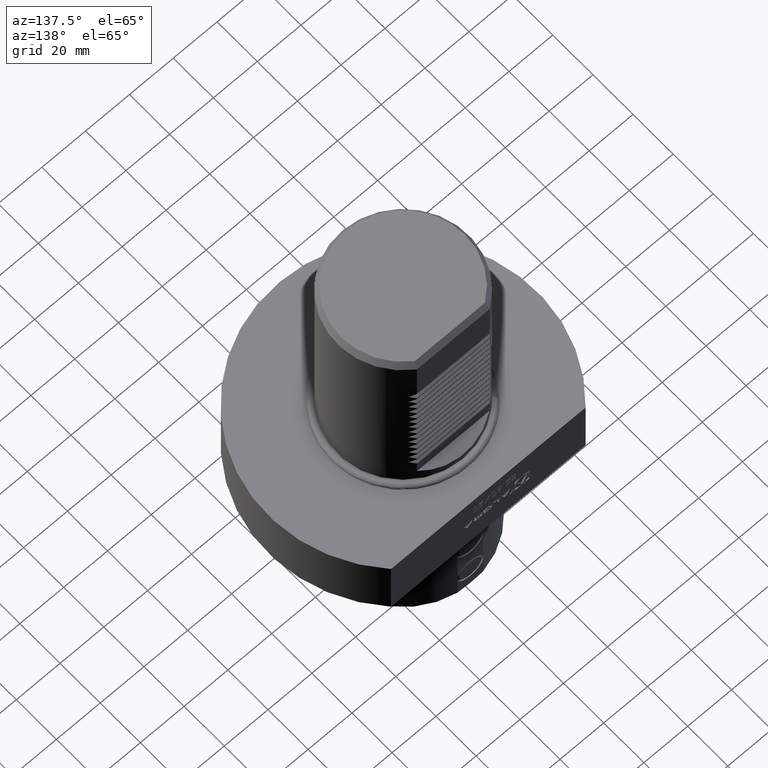
[diagram: clean part render]
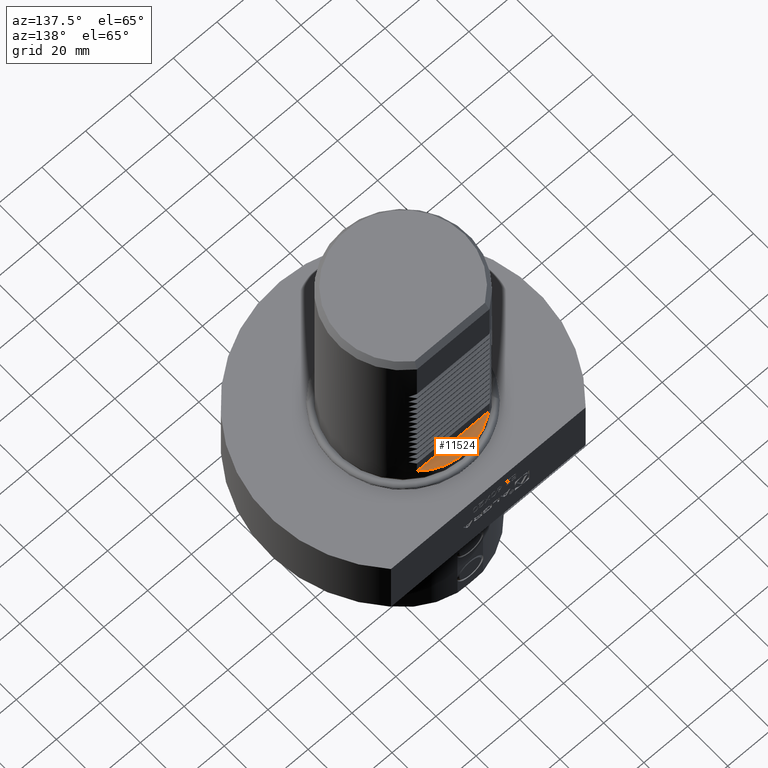
[diagram: same view with one face highlighted and labeled with its STEP entity id]
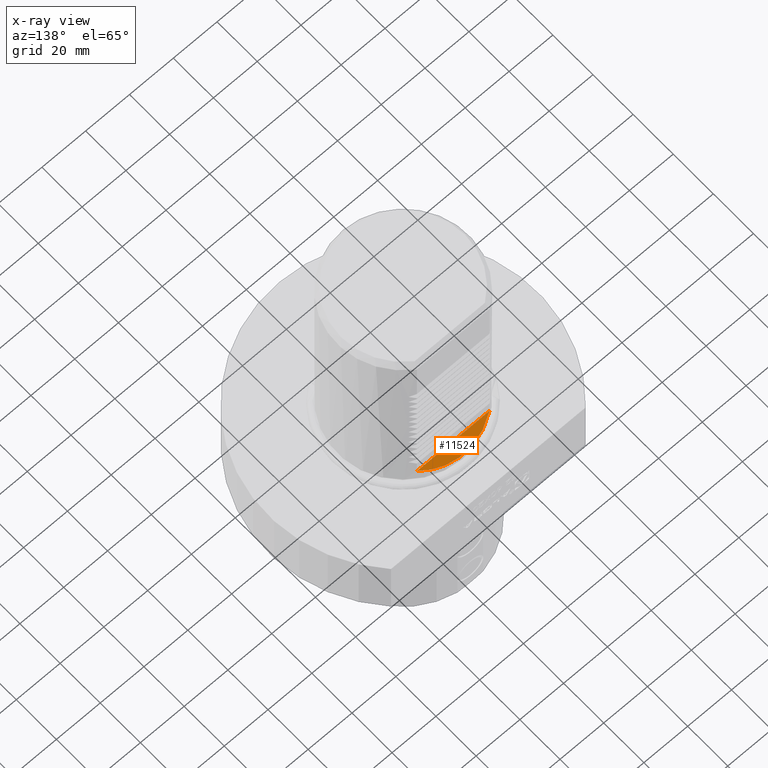
[diagram: x-ray of the same camera — body ghosted, the highlighted face saturated]
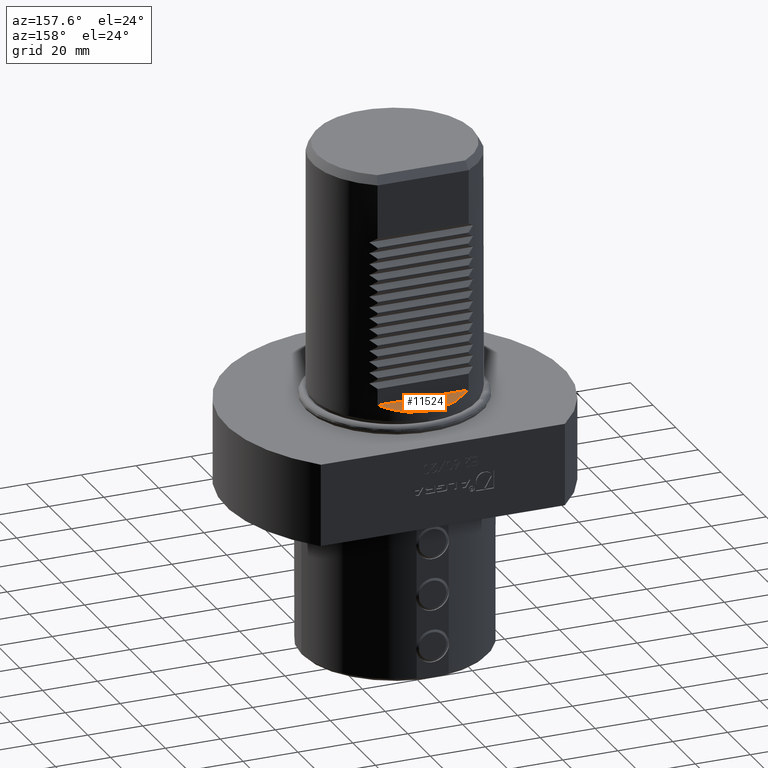
[diagram: same view with one face highlighted and labeled with its STEP entity id]
A machine part, auxiliary view. The second image highlights one B-rep face of the part: STEP entity #11524.
The next image is the same camera in x-ray: the body ghosted, the highlighted face saturated — about 0% of this face is hidden behind the body in this view.
A second angle (auxiliary view) of the same face is appended — the face is thin or edge-on in the first view.
In plain terms, the highlighted planar face has unit normal (-0, -0.5, -0.866).
Its self-contained STEP definition (entity closure, byte-faithful):
#5 = VECTOR ( 'NONE', #520, 1000.000000000000000 ) ;
#520 = DIRECTION ( 'NONE',  ( -1.000000000000000000, 4.440892098500630106E-16, 2.220446049250309876E-16 ) ) ;
#1223 = EDGE_LOOP ( 'NONE', ( #12660, #6761 ) ) ;
#1914 = PLANE ( 'NONE',  #6227 ) ;
#2330 = CARTESIAN_POINT ( 'NONE',  ( -16.58312395177700083, 25.00000000000000000, 10.00000000000000000 ) ) ;
#3008 =( BOUNDED_CURVE ( )  B_SPLINE_CURVE ( 3, ( #8386, #12762, #5833, #4916 ),
 .UNSPECIFIED., .F., .F. ) 
 B_SPLINE_CURVE_WITH_KNOTS ( ( 4, 4 ),
 ( 2.555907110132642046, 3.727278197046943298 ),
 .UNSPECIFIED. ) 
 CURVE ( )  GEOMETRIC_REPRESENTATION_ITEM ( )  RATIONAL_B_SPLINE_CURVE ( ( 1.000000000000000000, 0.8888888888888889506, 0.8888888888888889506, 1.000000000000000000 ) ) 
 REPRESENTATION_ITEM ( '' )  );
#3174 = CARTESIAN_POINT ( 'NONE',  ( 16.58312395177700083, 25.00000000000000000, 10.00000000000000000 ) ) ;
#4916 = CARTESIAN_POINT ( 'NONE',  ( 16.58312395177700083, 25.00000000000000000, 10.00000000000000000 ) ) ;
#5833 = CARTESIAN_POINT ( 'NONE',  ( 6.218671481916373978, 31.87499999999996447, 6.030716899321301838 ) ) ;
#6227 = AXIS2_PLACEMENT_3D ( 'NONE', #8682, #6363, #10017 ) ;
#6363 = DIRECTION ( 'NONE',  ( -4.143408735633878869E-16, -0.4999999999999998890, -0.8660254037844387076 ) ) ;
#6761 = ORIENTED_EDGE ( 'NONE', *, *, #9338, .F. ) ;
#8066 = VERTEX_POINT ( 'NONE', #2330 ) ;
#8386 = CARTESIAN_POINT ( 'NONE',  ( -16.58312395177700083, 25.00000000000000000, 10.00000000000000000 ) ) ;
#8610 = CARTESIAN_POINT ( 'NONE',  ( 1.332267629550189900E-14, 25.00000000000000000, 10.00000000000000000 ) ) ;
#8682 = CARTESIAN_POINT ( 'NONE',  ( 1.490213478262429939E-14, 30.00000000000000000, 7.113248654051870012 ) ) ;
#9338 = EDGE_CURVE ( 'NONE', #10990, #8066, #10950, .T. ) ;
#10017 = DIRECTION ( 'NONE',  ( 0.000000000000000000, -0.8660254037844387076, 0.4999999999999998890 ) ) ;
#10950 = LINE ( 'NONE', #8610, #5 ) ;
#10990 = VERTEX_POINT ( 'NONE', #3174 ) ;
#11524 = ADVANCED_FACE ( 'Defeature completata1_8', ( #13205 ), #1914, .F. ) ;
#12660 = ORIENTED_EDGE ( 'NONE', *, *, #13277, .F. ) ;
#12762 = CARTESIAN_POINT ( 'NONE',  ( -6.218671481916370425, 31.87499999999996447, 6.030716899321307167 ) ) ;
#13205 = FACE_OUTER_BOUND ( 'NONE', #1223, .T. ) ;
#13277 = EDGE_CURVE ( 'NONE', #8066, #10990, #3008, .T. ) ;